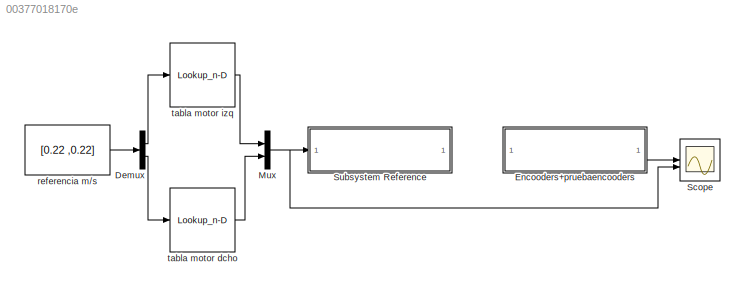
MODEL slx_00377018170e
KIND model
CONFIG AbsTol = auto
CONFIG EnableMultiTasking = on
CONFIG FixedStep = 0.01
CONFIG MaxStep = auto
CONFIG MinStep = auto
CONFIG RelTol = 1e-3
CONFIG SampleTimeConstraint = Unconstrained
CONFIG SolverName = FixedStepDiscrete
CONFIG StartTime = 0.0
CONFIG StopTime = inf
BLOCK [Demux] Demux
  Outputs = 2
BLOCK [SubSystem] Encooders+pruebaencooders
  ReferencedSubsystem = encoders
BLOCK [Mux] Mux
  DisplayOption = bar
  Inputs = 2
BLOCK [Scope] Scope
  Floating = off
  NumInputPorts = 2
  ScopeSpecificationString = Simulink.scopes.TimeScopeBlockCfg('CurrentConfiguration', extmgr.ConfigurationSet(extmgr.Configuration('Core','General UI',true),extmgr.Configuration('Core','Source UI',true),extmgr.Configuration('Sources','WiredSimulink',true),extmgr.Configuration('Visuals','Time Domain',true,'SerializedDisplays',{struct('MinYLimReal','-1.00000','MaxYLimReal','1.00000','YLabelReal','','MinYLimMag','0.00000','MaxY...<+2127ch>
BLOCK [SubSystem] Subsystem Reference
  ReferencedSubsystem = motores
BLOCK [Constant] referencia m//s
  SampleTime = 0.01
  Value = [0.22 ,0.22]
BLOCK [Lookup_n-D] tabla motor dcho
  BreakpointsForDimension1 = [-0.477422267198563 -0.40921825170517 -0.300104916095734 -0.204612106084824 -0.0954890102148056 0 0.122764877974987 0.231897622346878 0.327378809452057 0.409222036600113 0.491071224212647]
  InputPortMap = u0
  InternalRulePriority = Speed
  NumberOfTableDimensions = 1
  RndMeth = Simplest
  Table = [-255 -200 -150 -100 -50 0 50 100 150 200 255]
BLOCK [Lookup_n-D] tabla motor izq
  BreakpointsForDimension1 = [-0.491059511899948 -0.381950080394745 -0.286467015743256 -0.204606145620346 -0.0954890102148056 0 0.136402100324631 0.231886565685272 0.327384769916534 0.40922799706459 0.463787168264389]
  InputPortMap = u0
  InternalRulePriority = Speed
  NumberOfTableDimensions = 1
  RndMeth = Simplest
  Table = [-255 -200 -150 -100 -50 0 50 100 150 200 255]
LINE Demux:1 -> tabla motor izq:1
LINE Demux:2 -> tabla motor dcho:1
LINE Encooders+pruebaencooders:1 -> Scope:1
NET Mux:1 -> Scope:2, Subsystem Reference:1
LINE referencia m//s:1 -> Demux:1
LINE tabla motor dcho:1 -> Mux:2
LINE tabla motor izq:1 -> Mux:1
note: NET lines group one-source signal fan-out (src -> all destinations, sorted); 1:1 wires keep LINE
